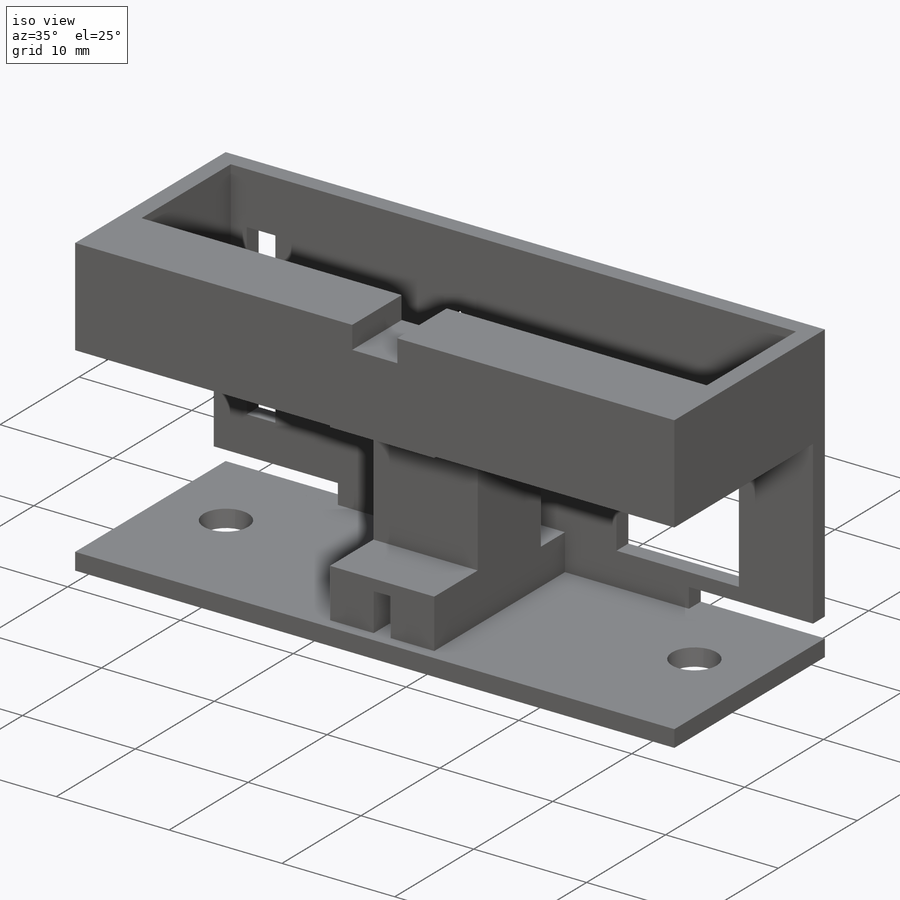
[diagram: iso view]
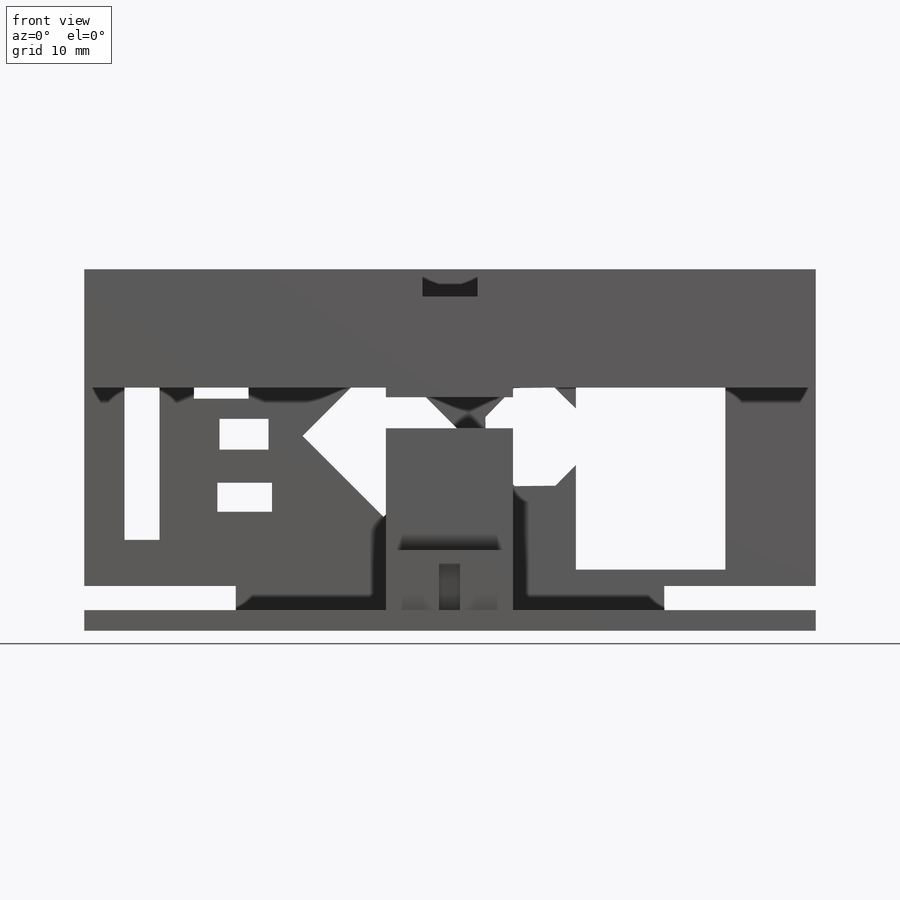
[diagram: front view]
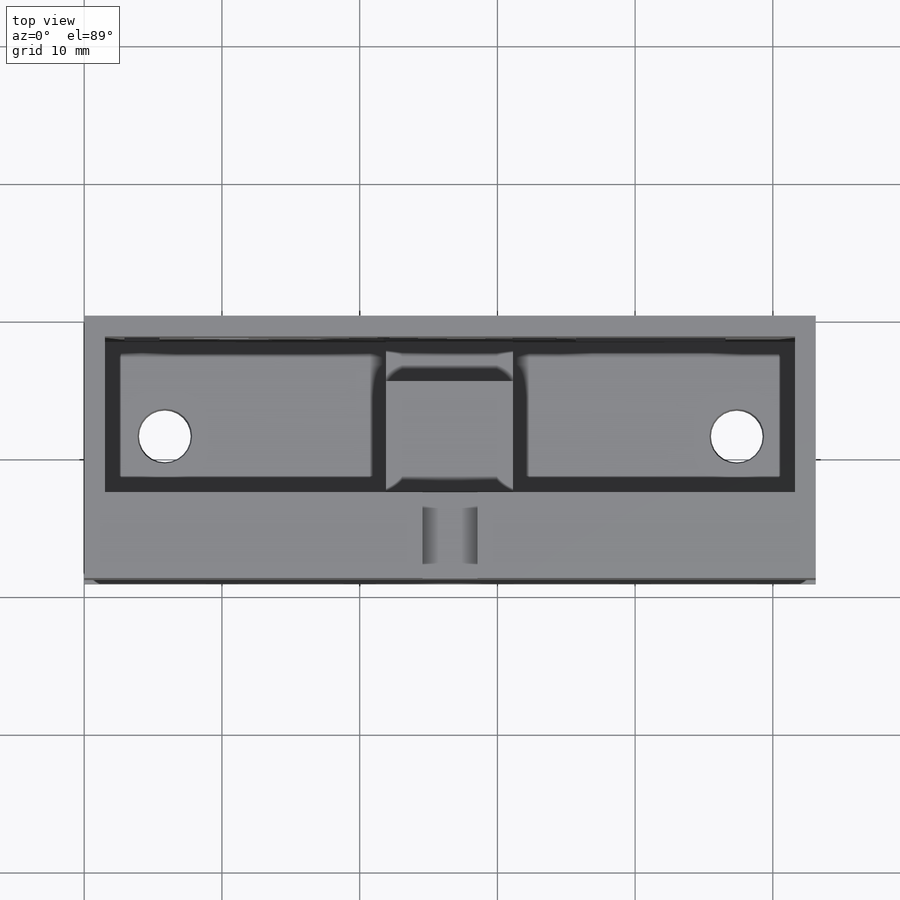
[diagram: top view]
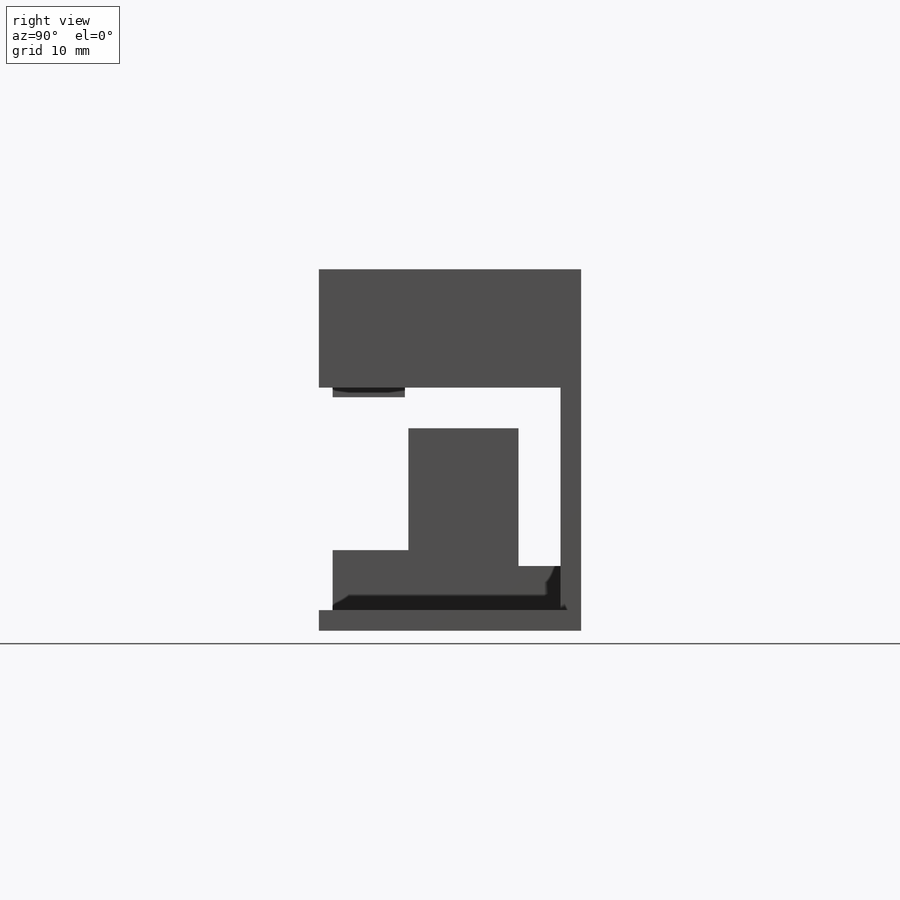
[diagram: right view]
SOLIDWORKS PART (.sldprt)
format: sldprt  version: not decoded by parser v0  size: 640,512 bytes
history: native  units: mm
features: sketch x18, extrude x9, hole x2, material x1, cut_extrude x1, plane x1 (+13 scaffold rows collapsed)
feature tree (45):
  scaffold x13  (default folders/planes/origin — collapsed)
  material  "Material <not specified>"
  sketch  "Sketch1"  dims[D1=0.0mm D2=0.0mm]
  extrude  "Front Side - Main"  Depth=1.5mm
  sketch  "Reset Hole Sketch"
  cut_extrude  "Reset Hole"  [1 undecoded]
  sketch  "Sketch15"
  plane  "Plane4"  Offset=1.5mm
  sketch  "Sketch16"  dims[D1=0.0mm]
  hole  "Microphone Hole"  [1 undecoded]
  sketch  "Sketch24"  dims[D1=1.5mm]
  extrude  "Right Side - Top"  Depth=0.75mm
  sketch  "Sketch20"  dims[D1=1.5mm]
  extrude  "Bottom Base"  [1 undecoded]
  sketch  "Battery Line"  dims[c1.D1=1.0mm c1.D2=1.0mm c2.D1=1.0mm c2.D2=1.0mm]
  sketch  "Sketch26"  dims[D1=0.0mm]
  extrude  "Left Side - Top"  [1 undecoded]
  sketch  "Sketch27"  dims[c1.D1=1.0mm c1.D2=0.2mm c2.D1=0.25mm c2.D2=~4.928212mm c3.D1=0.0mm]
  extrude  "Back Bar - Top"  [1 undecoded]
  sketch  "Sketch18"  dims[D1=0.2mm D2=0.2mm D3=0.5mm D4=~7.567522mm]
  extrude  "Servo Seperator - Bottom"  [1 undecoded]
  sketch  "Sketch28"
  extrude  "Back Battery Holder - Top"  [1 undecoded]
  sketch  "Sketch34"
  hole  "Programming Hole"  [1 undecoded]
  sketch  "Sketch38"
  extrude  "Back Battery Holder - Bottom"  [1 undecoded]
  sketch  "Sketch40"  dims[c1.D1=~3.755256mm c1.D2=~3.255256mm c1.D3=~3.255256mm c1.D4=~4.497293mm c2.D3=~3.255256mm c2.D4=~3.755256mm c2.D1=0.1mm c3.D3=4.0deg]
  sketch  "Sketch44"  dims[c1.D1=1.5mm c1.D2=1.0mm c2.D1=2.0mm]
  sketch  "Sketch46"  dims[c1.D1=4.0mm c2.D1=2.0mm]
  sketch  "Sketch47"
  sketch  "Sketch49"
  extrude  "Raised Servo Seperator"  Depth=10mm
decode coverage: 14 of 30 modeling features carry decoded parameters
note: ~ marks probable driven/reference dimensions
note: 9 parameter values undecoded
summary: no parameter record found for 9 features
note: suppression state not decoded; provenance and decode notes live in map.json
